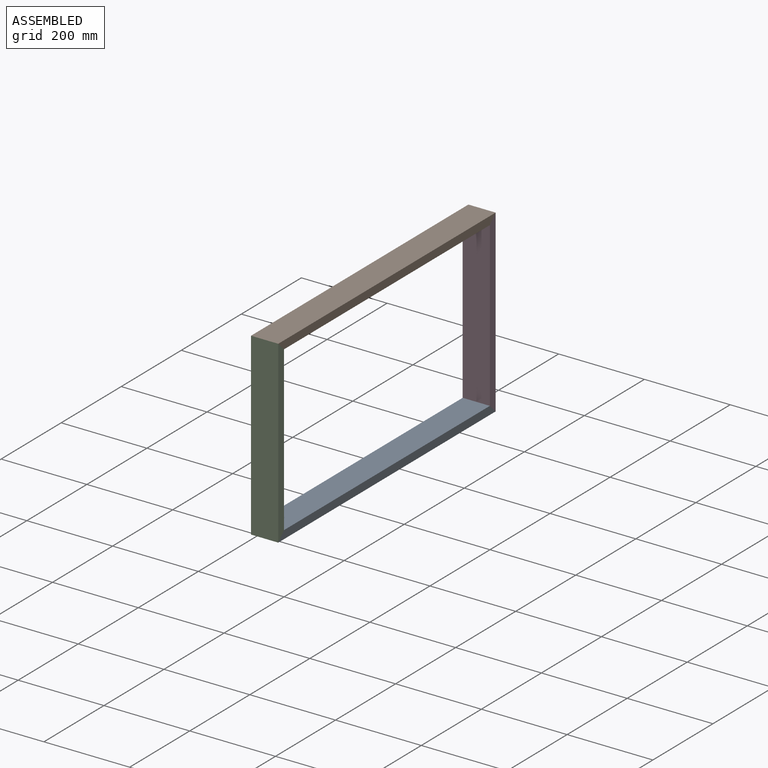
[diagram: assembled view]
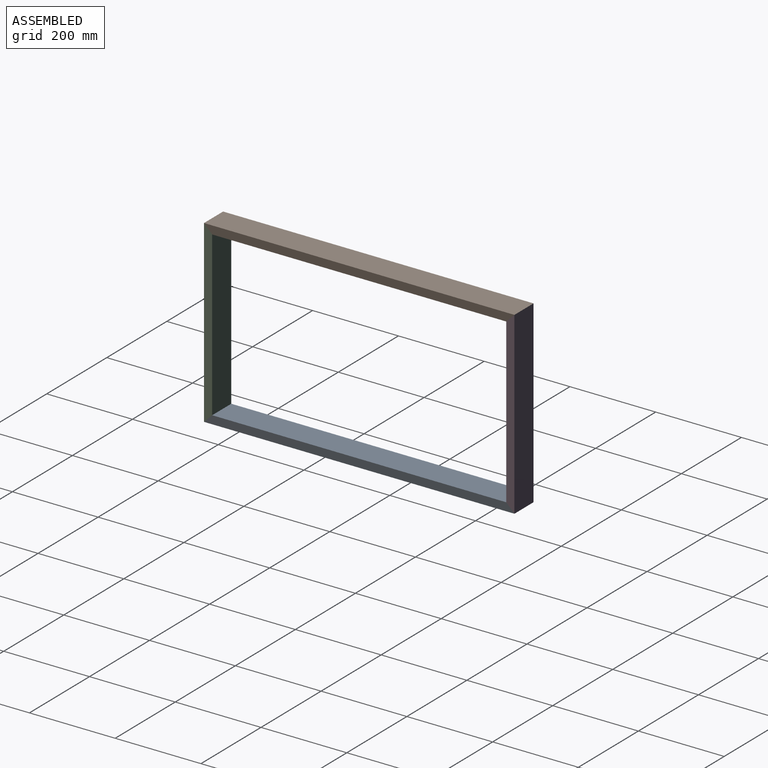
[diagram: assembled view, second angle]
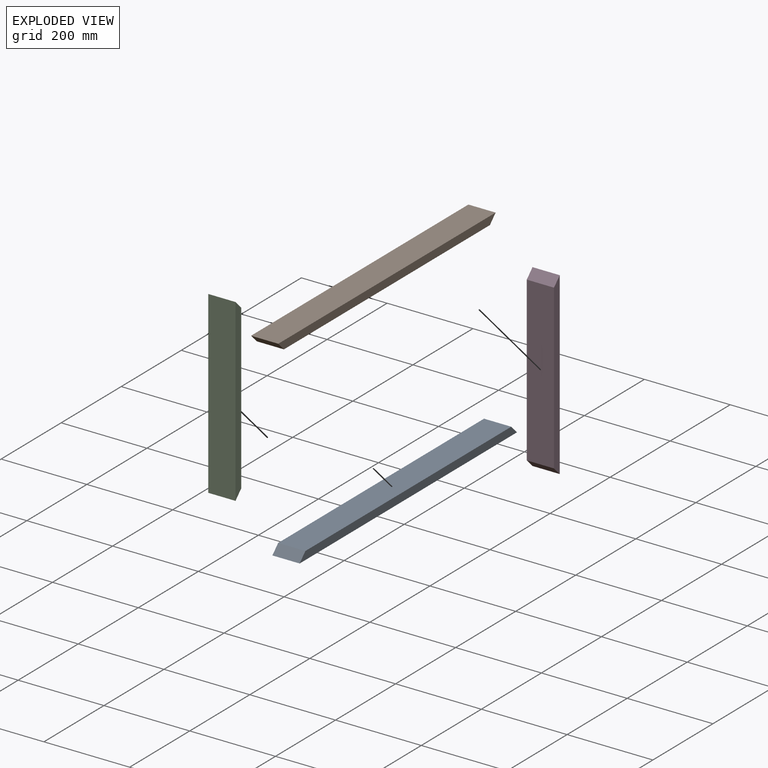
[diagram: exploded view]
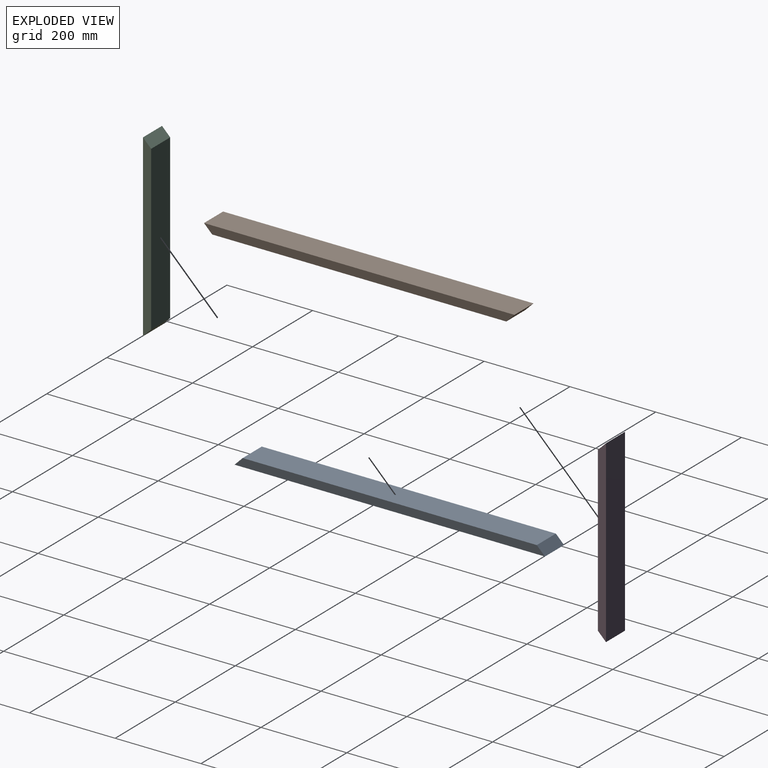
[diagram: exploded view, second angle]
ASSEMBLY  parts=4 mates=3
PART A: 6 faces, bbox 723.9x63.5x19.1 mm
  f0: plane 723.9x19.05mm, normal (0,-1,0), area 13427.4mm2, adj f1,f3,f4,f5
  f1: plane 685.8x63.5mm, normal (0,0,-1), area 43548.3mm2, adj f0,f2,f4,f5
  f2: plane 723.9x19.05mm, normal (0,1,0), area 13427.4mm2, adj f1,f3,f4,f5
  f3: plane 723.9x63.5mm, normal (0,0,1), area 45967.7mm2, adj f0,f2,f4,f5
  f4: plane 63.5x19.05mm, normal (0.71,0,-0.71), area 1710.7mm2, adj f0,f1,f2,f3
  f5: plane 63.5x19.05mm, normal (-0.71,0,-0.71), area 1710.7mm2, adj f0,f1,f2,f3
PART B: same geometry as A
PART C: 6 faces, bbox 419.1x63.5x19.1 mm
  f0: plane 419.1x19.05mm, normal (0,-1,0), area 7621mm2, adj f1,f3,f4,f5
  f1: plane 381x63.5mm, normal (0,0,-1), area 24193.5mm2, adj f0,f2,f4,f5
  f2: plane 419.1x19.05mm, normal (0,1,0), area 7621mm2, adj f1,f3,f4,f5
  f3: plane 419.1x63.5mm, normal (0,0,1), area 26612.8mm2, adj f0,f2,f4,f5
  f4: plane 63.5x19.05mm, normal (0.71,0,-0.71), area 1710.7mm2, adj f0,f1,f2,f3
  f5: plane 63.5x19.05mm, normal (-0.71,0,-0.71), area 1710.7mm2, adj f0,f1,f2,f3
PART D: same geometry as C
PLACE A rot(axis=(-0.71,0.71,0),180deg) t=(128.56,-79.1,-216.06)mm
PLACE B rot(axis=(0,0,-1),90deg) t=(65.06,-79.1,164.94)mm
PLACE C rot(axis=(0.58,-0.58,0.58),120deg) t=(128.56,-783.95,-235.11)mm
PLACE D rot(axis=(-0.58,0.58,0.58),120deg) t=(128.56,-98.15,183.99)mm
MATE fastened C.f5 <-> A.f4  axis (0,0.71,-0.71) through (96.81,-793.48,-225.58)mm
MATE fastened D.f5 <-> B.f5  axis (0,-0.71,0.71) through (96.81,-88.63,174.47)mm
MATE fastened A.f5 <-> D.f4  axis (0,0.71,0.71) through (96.81,-88.63,-225.58)mm
